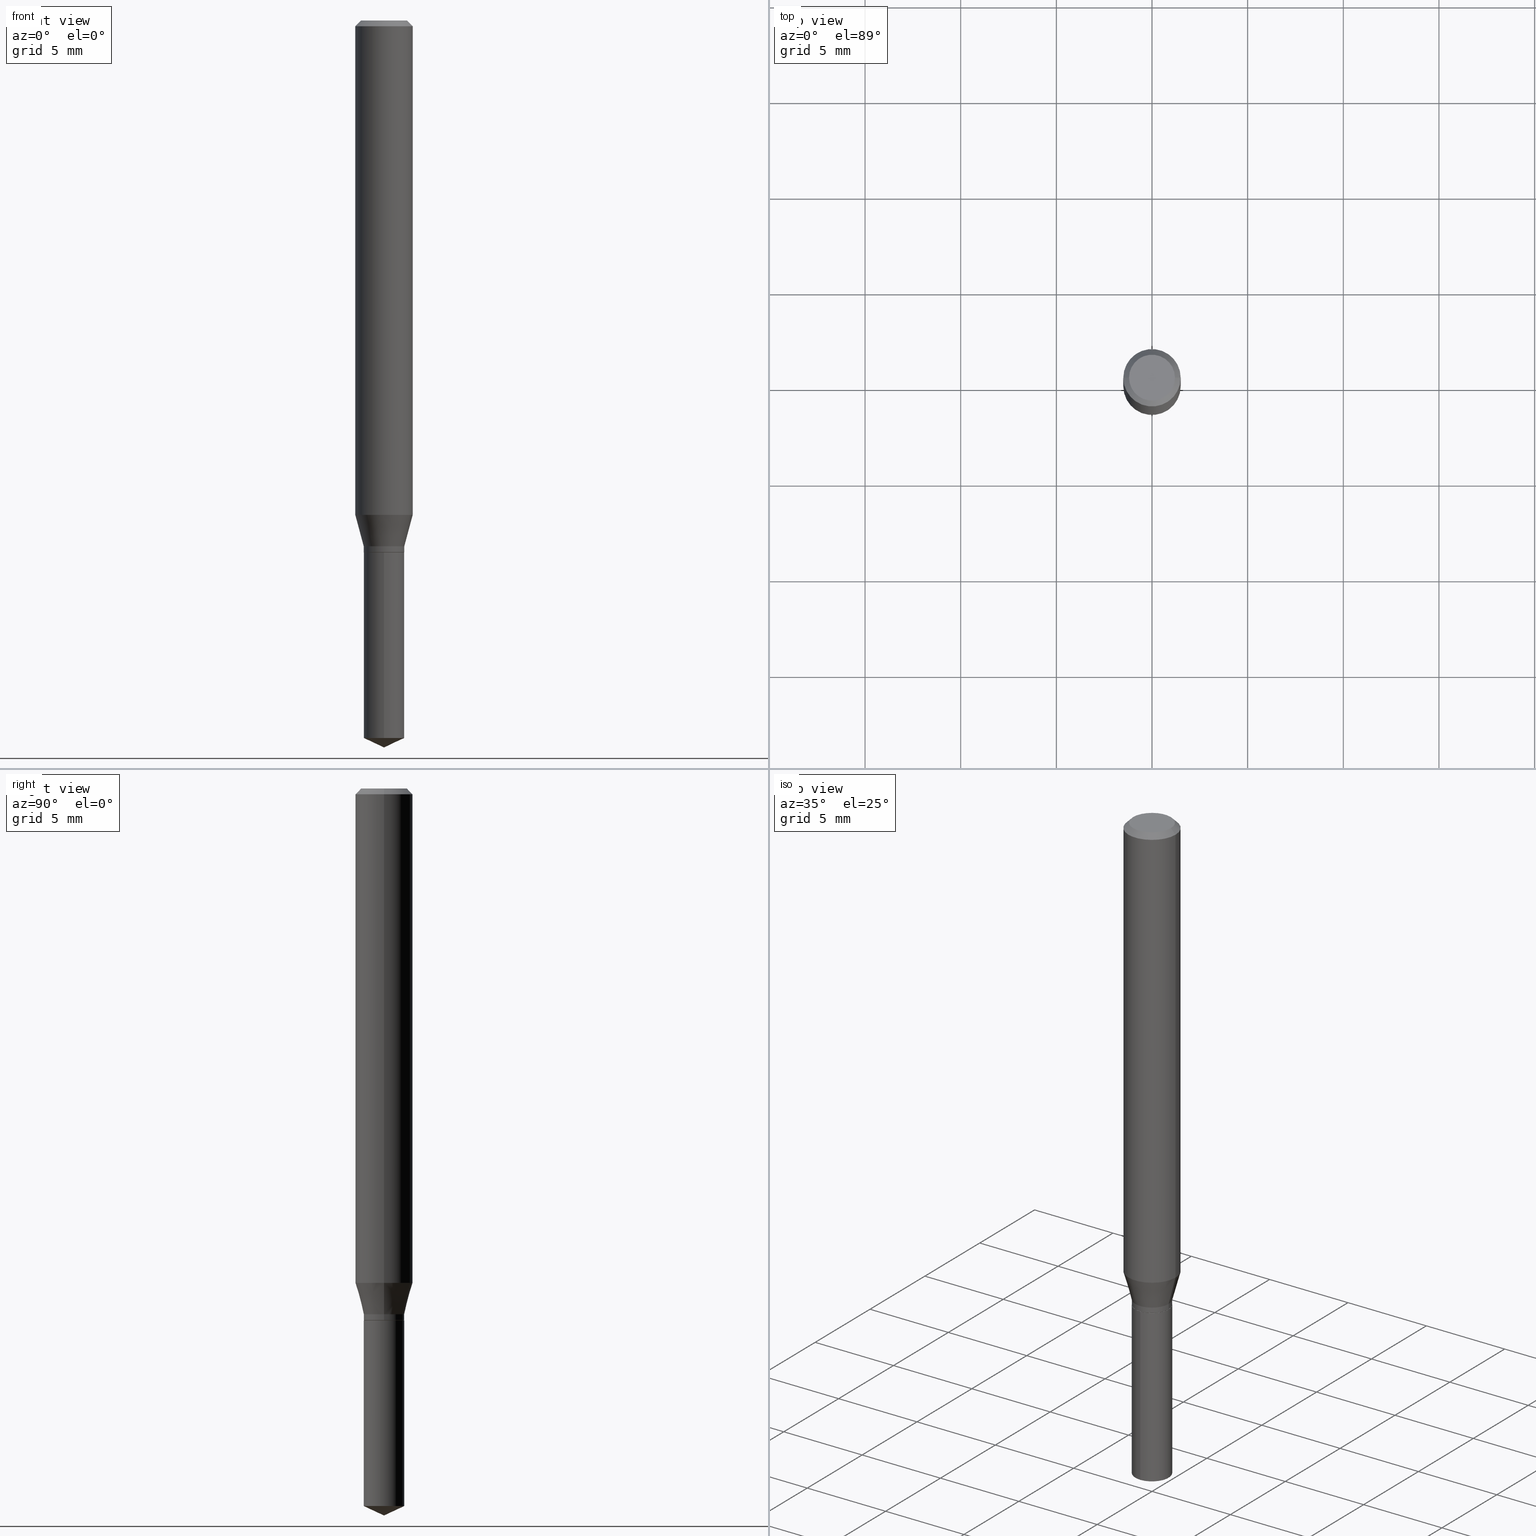
[diagram: canonical four-view strip — front | top / right | iso, engineering-drawing reading convention]
A machine part, canonical four-view strip (front | top / right | iso — engineering-drawing reading convention). The complete STEP part file that produces these views, byte-faithful:
ISO-10303-21;
HEADER;
FILE_DESCRIPTION (( 'STEP AP203' ),
    '1' );
FILE_NAME ('07615.STEP',
    '2024-04-23T23:48:28',
    ( '' ),
    ( '' ),
    'SwSTEP 2.0',
    'SolidWorks 2023',
    '' );
FILE_SCHEMA (( 'CONFIG_CONTROL_DESIGN' ));
ENDSEC;

DATA;
#1 = COORDINATED_UNIVERSAL_TIME_OFFSET ( 5, 0, .BEHIND. ) ;
#2 = AXIS2_PLACEMENT_3D ( 'NONE', #426, #423, #191 ) ;
#3 = ORGANIZATION ( 'UNSPECIFIED', 'UNSPECIFIED', '' ) ;
#4 = CARTESIAN_POINT ( 'NONE',  ( 0.04724000000000000421, -3.852183633974369838E-16, -3.380025165621689721E-19 ) ) ;
#5 = DIRECTION ( 'NONE',  ( -2.445468806185136877E-29, 3.491481338843145188E-15, 1.000000000000000000 ) ) ;
#6 = DIRECTION ( 'NONE',  ( 1.000000000000000000, -6.982962677686269077E-15, 0.000000000000000000 ) ) ;
#7 = DIRECTION ( 'NONE',  ( -2.445468806185136597E-29, 3.491481338843145583E-15, 1.000000000000000000 ) ) ;
#8 = DESIGN_CONTEXT ( 'detailed design', #301, 'design' ) ;
#9 = DIRECTION ( 'NONE',  ( -6.328713451373384367E-15, -0.9063077870366507138, 0.4226182617406976649 ) ) ;
#10 = DIRECTION ( 'NONE',  ( -6.982962677686268288E-15, -1.000000000000000000, 3.520397390770420738E-15 ) ) ;
#11 = VECTOR ( 'NONE', #251, 39.37007874015748143 ) ;
#12 = CARTESIAN_POINT ( 'NONE',  ( -2.915386917933655073E-16, -0.04175000000000516492, -1.476631655272028665 ) ) ;
#13 = CC_DESIGN_SECURITY_CLASSIFICATION ( #363, ( #417 ) ) ;
#14 = EDGE_LOOP ( 'NONE', ( #66, #106, #164, #389 ) ) ;
#15 = CARTESIAN_POINT ( 'NONE',  ( 0.04175000000000000239, -4.069321500421684169E-15, -1.081999999999999851 ) ) ;
#16 = CARTESIAN_POINT ( 'NONE',  ( 2.676565608369631794E-29, -3.821426325363822773E-15, -1.094499999999999806 ) ) ;
#17 = DIRECTION ( 'NONE',  ( -6.982962677686266711E-15, -1.000000000000000000, 3.271674243909297046E-15 ) ) ;
#18 = EDGE_CURVE ( 'NONE', #35, #111, #105, .T. ) ;
#19 = CYLINDRICAL_SURFACE ( 'NONE', #295, 0.05905000000000006771 ) ;
#20 = CARTESIAN_POINT ( 'NONE',  ( 2.676565608369631794E-29, -3.821426325363822773E-15, -1.094499999999999806 ) ) ;
#21 = VECTOR ( 'NONE', #9, 39.37007874015748854 ) ;
#22 = LINE ( 'NONE', #27, #11 ) ;
#23 = EDGE_LOOP ( 'NONE', ( #406, #482, #462, #44 ) ) ;
#24 = DATE_AND_TIME ( #355, #30 ) ;
#25 = DIRECTION ( 'NONE',  ( 1.000000000000000000, -6.982962677686269077E-15, 0.000000000000000000 ) ) ;
#26 = APPROVAL_STATUS ( 'not_yet_approved' ) ;
#27 = CARTESIAN_POINT ( 'NONE',  ( -0.04175000000000000239, 2.966515921798418446E-16, -2.053655400181423574E-30 ) ) ;
#28 = ORIENTED_EDGE ( 'NONE', *, *, #99, .F. ) ;
#29 =( LENGTH_UNIT ( ) NAMED_UNIT ( * ) SI_UNIT ( $, .METRE. ) );
#30 = LOCAL_TIME ( 19, 48, 28.00000000000000000, #471 ) ;
#31 = ADVANCED_FACE ( 'NONE', ( #270 ), #121, .F. ) ;
#32 = ADVANCED_FACE ( 'NONE', ( #458 ), #265, .T. ) ;
#33 = AXIS2_PLACEMENT_3D ( 'NONE', #469, #131, #59 ) ;
#34 = AXIS2_PLACEMENT_3D ( 'NONE', #39, #80, #353 ) ;
#35 = VERTEX_POINT ( 'NONE', #461 ) ;
#36 = PERSON_AND_ORGANIZATION ( #382, #3 ) ;
#37 = UNCERTAINTY_MEASURE_WITH_UNIT (LENGTH_MEASURE( 1.000000000000000082E-05 ), #445, 'distance_accuracy_value', 'NONE');
#38 = DIRECTION ( 'NONE',  ( 1.000000000000000000, -6.982962677686267499E-15, 0.000000000000000000 ) ) ;
#39 = CARTESIAN_POINT ( 'NONE',  ( 8.265746106709734507E-48, -1.180129479067563789E-33, -3.380025165646692144E-19 ) ) ;
#40 = DIRECTION ( 'NONE',  ( 1.000000000000000000, -6.982962677686265133E-15, 0.000000000000000000 ) ) ;
#41 = AXIS2_PLACEMENT_3D ( 'NONE', #199, #314, #230 ) ;
#42 = AXIS2_PLACEMENT_3D ( 'NONE', #402, #367, #180 ) ;
#43 = EDGE_CURVE ( 'NONE', #274, #281, #49, .T. ) ;
#44 = ORIENTED_EDGE ( 'NONE', *, *, #101, .T. ) ;
#45 = LINE ( 'NONE', #428, #383 ) ;
#46 = PRODUCT ( '07615', '07615', '', ( #420 ) ) ;
#47 = CARTESIAN_POINT ( 'NONE',  ( -0.04724000000000000421, 3.504923541997677355E-16, -3.380025165670481712E-19 ) ) ;
#48 = EDGE_CURVE ( 'NONE', #281, #325, #253, .T. ) ;
#49 = LINE ( 'NONE', #465, #474 ) ;
#50 = CARTESIAN_POINT ( 'NONE',  ( -0.04175000000000000239, -3.481131216448440529E-15, -1.081999999999999851 ) ) ;
#51 = DIRECTION ( 'NONE',  ( 0.2588190451025213501, 1.565188264969621968E-15, 0.9659258262890682012 ) ) ;
#52 = VECTOR ( 'NONE', #275, 39.37007874015748143 ) ;
#53 = CARTESIAN_POINT ( 'NONE',  ( 0.05905000000000000526, -4.535783407291119586E-16, -0.01181000000000007565 ) ) ;
#54 = EDGE_LOOP ( 'NONE', ( #56, #240, #145, #401 ) ) ;
#55 = CARTESIAN_POINT ( 'NONE',  ( -9.261924752013118283E-28, 1.322368428517963298E-13, 37.87397874015748300 ) ) ;
#56 = ORIENTED_EDGE ( 'NONE', *, *, #48, .T. ) ;
#57 = CARTESIAN_POINT ( 'NONE',  ( 0.04175000000000000239, -4.069321500421684169E-15, -1.081999999999999851 ) ) ;
#58 = APPROVAL_ROLE ( '' ) ;
#59 = DIRECTION ( 'NONE',  ( 1.000000000000000000, -6.982962677686266711E-15, 4.876176775795936914E-29 ) ) ;
#60 = EDGE_LOOP ( 'NONE', ( #88, #156, #171, #161 ) ) ;
#61 = PERSON_AND_ORGANIZATION_ROLE ( 'creator' ) ;
#62 =( NAMED_UNIT ( * ) PLANE_ANGLE_UNIT ( ) SI_UNIT ( $, .RADIAN. ) );
#63 = VECTOR ( 'NONE', #358, 39.37007874015748143 ) ;
#64 = DATE_AND_TIME ( #376, #256 ) ;
#65 = CC_DESIGN_APPROVAL ( #259, ( #363 ) ) ;
#66 = ORIENTED_EDGE ( 'NONE', *, *, #343, .F. ) ;
#67 = FACE_OUTER_BOUND ( 'NONE', #237, .T. ) ;
#68 = APPROVAL_PERSON_ORGANIZATION ( #484, #259, #369 ) ;
#69 = CALENDAR_DATE ( 2024, 23, 4 ) ;
#70 = APPROVAL_DATE_TIME ( #450, #259 ) ;
#71 = EDGE_CURVE ( 'NONE', #414, #135, #291, .T. ) ;
#72 = CIRCLE ( 'NONE', #139, 0.04175000000000000239 ) ;
#73 = AXIS2_PLACEMENT_3D ( 'NONE', #20, #399, #440 ) ;
#74 = EDGE_CURVE ( 'NONE', #135, #414, #361, .T. ) ;
#75 = ORIENTED_EDGE ( 'NONE', *, *, #222, .F. ) ;
#76 = SECURITY_CLASSIFICATION_LEVEL ( 'unclassified' ) ;
#77 = CIRCLE ( 'NONE', #34, 0.04724000000000000421 ) ;
#78 = PERSON_AND_ORGANIZATION_ROLE ( 'design_supplier' ) ;
#79 = LINE ( 'NONE', #15, #334 ) ;
#80 = DIRECTION ( 'NONE',  ( -2.445468806185136597E-29, 3.491481338843145583E-15, 1.000000000000000000 ) ) ;
#81 = DIRECTION ( 'NONE',  ( -6.982962677686266711E-15, -1.000000000000000000, 6.543348487818594091E-15 ) ) ;
#82 = AXIS2_PLACEMENT_3D ( 'NONE', #159, #380, #434 ) ;
#83 = EDGE_CURVE ( 'NONE', #201, #431, #279, .T. ) ;
#84 = AXIS2_PLACEMENT_3D ( 'NONE', #160, #463, #282 ) ;
#85 = APPROVAL ( #147, 'UNSPECIFIED' ) ;
#86 = FACE_OUTER_BOUND ( 'NONE', #370, .T. ) ;
#87 = EDGE_LOOP ( 'NONE', ( #243, #178 ) ) ;
#88 = ORIENTED_EDGE ( 'NONE', *, *, #250, .T. ) ;
#89 = EDGE_LOOP ( 'NONE', ( #93, #468, #129, #357 ) ) ;
#90 = DIRECTION ( 'NONE',  ( -2.445458899330790108E-29, 3.491495526022433205E-15, 1.000000000000000000 ) ) ;
#91 = DIRECTION ( 'NONE',  ( -2.445468806185136597E-29, 3.491481338843145583E-15, 1.000000000000000000 ) ) ;
#92 = DIRECTION ( 'NONE',  ( -2.445468806185136597E-29, 3.491481338843145583E-15, 1.000000000000000000 ) ) ;
#93 = ORIENTED_EDGE ( 'NONE', *, *, #448, .F. ) ;
#94 = CARTESIAN_POINT ( 'NONE',  ( 0.04175000000000000239, -4.111219276487802621E-15, -1.093999999999999861 ) ) ;
#95 = CARTESIAN_POINT ( 'NONE',  ( 0.000000000000000000, 0.000000000000000000, 0.000000000000000000 ) ) ;
#96 = DIRECTION ( 'NONE',  ( 1.000000000000000000, -6.982962677686268288E-15, 0.000000000000000000 ) ) ;
#97 = CARTESIAN_POINT ( 'NONE',  ( 0.05905000000000000526, -4.463468013801467941E-16, -0.01181000000000007565 ) ) ;
#98 = ORIENTED_EDGE ( 'NONE', *, *, #403, .T. ) ;
#99 = EDGE_CURVE ( 'NONE', #35, #433, #154, .T. ) ;
#100 = APPROVAL_DATE_TIME ( #205, #236 ) ;
#101 = EDGE_CURVE ( 'NONE', #351, #431, #339, .T. ) ;
#102 = CARTESIAN_POINT ( 'NONE',  ( -0.04125000000000000194, -3.528327446862781778E-15, -1.094500000000000028 ) ) ;
#103 = AXIS2_PLACEMENT_3D ( 'NONE', #480, #407, #177 ) ;
#104 = AXIS2_PLACEMENT_3D ( 'NONE', #16, #90, #231 ) ;
#105 = LINE ( 'NONE', #126, #427 ) ;
#106 = ORIENTED_EDGE ( 'NONE', *, *, #329, .T. ) ;
#107 = ORIENTED_EDGE ( 'NONE', *, *, #394, .F. ) ;
#108 = PERSON_AND_ORGANIZATION ( #382, #3 ) ;
#109 = APPLICATION_PROTOCOL_DEFINITION ( 'international standard', 'config_control_design', 1994, #217 ) ;
#110 = ADVANCED_FACE ( 'NONE', ( #387 ), #437, .T. ) ;
#111 = VERTEX_POINT ( 'NONE', #119 ) ;
#112 = EDGE_CURVE ( 'NONE', #281, #201, #79, .T. ) ;
#113 = CARTESIAN_POINT ( 'NONE',  ( 4.132873053354867254E-48, -5.900647395337818946E-34, -1.690012582823346072E-19 ) ) ;
#114 = AXIS2_PLACEMENT_3D ( 'NONE', #324, #207, #17 ) ;
#115 = EDGE_CURVE ( 'NONE', #433, #35, #72, .T. ) ;
#116 = DIRECTION ( 'NONE',  ( -2.445468806185136597E-29, 3.491481338843145583E-15, 1.000000000000000000 ) ) ;
#117 = DIRECTION ( 'NONE',  ( 0.7071067811864267805, -2.468850131080992517E-15, 0.7071067811866682540 ) ) ;
#118 = ORIENTED_EDGE ( 'NONE', *, *, #424, .F. ) ;
#119 = CARTESIAN_POINT ( 'NONE',  ( 2.966515921798779349E-16, 0.04174999999999617906, -1.094500000000000028 ) ) ;
#120 = EDGE_CURVE ( 'NONE', #430, #351, #45, .T. ) ;
#121 = PLANE ( 'NONE',  #272 ) ;
#122 = VERTEX_POINT ( 'NONE', #238 ) ;
#123 = CARTESIAN_POINT ( 'NONE',  ( -2.915386917933749243E-16, -0.04175000000000383266, -1.094499999999999806 ) ) ;
#124 = ORIENTED_EDGE ( 'NONE', *, *, #120, .F. ) ;
#125 = DIRECTION ( 'NONE',  ( -2.445458899330790108E-29, 3.491495526022433205E-15, 1.000000000000000000 ) ) ;
#126 = CARTESIAN_POINT ( 'NONE',  ( 2.966515921798685672E-16, 0.04174999999999617906, -1.094500000000000028 ) ) ;
#127 = CIRCLE ( 'NONE', #411, 0.05905000000000013016 ) ;
#128 = CARTESIAN_POINT ( 'NONE',  ( 8.265746106709734507E-48, -1.180129479067563789E-33, -3.380025165646692144E-19 ) ) ;
#129 = ORIENTED_EDGE ( 'NONE', *, *, #418, .T. ) ;
#130 = ORIENTED_EDGE ( 'NONE', *, *, #115, .F. ) ;
#131 = DIRECTION ( 'NONE',  ( -2.445468806185136597E-29, 3.491481338843145583E-15, 1.000000000000000000 ) ) ;
#132 = DIRECTION ( 'NONE',  ( 2.445468806185136597E-29, -3.491481338843145583E-15, -1.000000000000000000 ) ) ;
#133 = ORIENTED_EDGE ( 'NONE', *, *, #418, .F. ) ;
#134 = DIRECTION ( 'NONE',  ( -0.2588190451025213501, 5.211531920934551042E-15, 0.9659258262890682012 ) ) ;
#135 = VERTEX_POINT ( 'NONE', #168 ) ;
#136 = ORIENTED_EDGE ( 'NONE', *, *, #184, .T. ) ;
#137 = FACE_OUTER_BOUND ( 'NONE', #333, .T. ) ;
#138 = COORDINATED_UNIVERSAL_TIME_OFFSET ( 5, 0, .BEHIND. ) ;
#139 = AXIS2_PLACEMENT_3D ( 'NONE', #352, #202, #81 ) ;
#140 = CC_DESIGN_APPROVAL ( #236, ( #307 ) ) ;
#141 = DIRECTION ( 'NONE',  ( -2.445458899330790108E-29, 3.491495526022433599E-15, 1.000000000000000000 ) ) ;
#142 = ORIENTED_EDGE ( 'NONE', *, *, #263, .F. ) ;
#143 = DIRECTION ( 'NONE',  ( -2.445468806185136597E-29, 3.491481338843145583E-15, 1.000000000000000000 ) ) ;
#144 = ADVANCED_FACE ( 'NONE', ( #391 ), #190, .T. ) ;
#145 = ORIENTED_EDGE ( 'NONE', *, *, #250, .F. ) ;
#146 = CC_DESIGN_PERSON_AND_ORGANIZATION_ASSIGNMENT ( #36, #422, ( #363 ) ) ;
#147 = APPROVAL_STATUS ( 'not_yet_approved' ) ;
#148 = CYLINDRICAL_SURFACE ( 'NONE', #73, 0.04175000000000000239 ) ;
#149 = CIRCLE ( 'NONE', #421, 0.05905000000000000526 ) ;
#150 = CIRCLE ( 'NONE', #276, 0.04724000000000000421 ) ;
#151 = ORIENTED_EDGE ( 'NONE', *, *, #74, .F. ) ;
#152 = EDGE_CURVE ( 'NONE', #430, #201, #416, .T. ) ;
#153 = PERSON_AND_ORGANIZATION ( #382, #3 ) ;
#154 = CIRCLE ( 'NONE', #326, 0.04175000000000000239 ) ;
#155 = DIRECTION ( 'NONE',  ( 2.438088387897960049E-29, -3.491481338843145188E-15, -1.000000000000000000 ) ) ;
#156 = ORIENTED_EDGE ( 'NONE', *, *, #120, .T. ) ;
#157 = LINE ( 'NONE', #459, #309 ) ;
#158 = ADVANCED_FACE ( 'NONE', ( #195 ), #174, .T. ) ;
#159 = CARTESIAN_POINT ( 'NONE',  ( 2.888098660104664642E-31, -4.123439461173780879E-17, -0.01181000000000007565 ) ) ;
#160 = CARTESIAN_POINT ( 'NONE',  ( 2.676565608369632355E-29, -3.821426325363822773E-15, -1.094500000000000028 ) ) ;
#161 = ORIENTED_EDGE ( 'NONE', *, *, #83, .F. ) ;
#162 = CARTESIAN_POINT ( 'NONE',  ( -9.261924752013118283E-28, 1.322368428517963298E-13, 37.87397874015748300 ) ) ;
#163 = FACE_OUTER_BOUND ( 'NONE', #87, .T. ) ;
#164 = ORIENTED_EDGE ( 'NONE', *, *, #112, .T. ) ;
#165 = FACE_OUTER_BOUND ( 'NONE', #312, .T. ) ;
#166 = AXIS2_PLACEMENT_3D ( 'NONE', #209, #286, #25 ) ;
#167 = CARTESIAN_POINT ( 'NONE',  ( 2.888098660104664642E-31, -4.123439461173780879E-17, -0.01181000000000007565 ) ) ;
#168 = CARTESIAN_POINT ( 'NONE',  ( -0.04125000000000000194, -3.525678219688670183E-15, -1.094500000000000028 ) ) ;
#169 = LINE ( 'NONE', #50, #385 ) ;
#170 = FACE_OUTER_BOUND ( 'NONE', #366, .T. ) ;
#171 = ORIENTED_EDGE ( 'NONE', *, *, #486, .F. ) ;
#172 = ORIENTED_EDGE ( 'NONE', *, *, #394, .T. ) ;
#173 = CARTESIAN_POINT ( 'NONE',  ( -2.915386917933749243E-16, -0.04175000000000383266, -1.094499999999999806 ) ) ;
#174 = CONICAL_SURFACE ( 'NONE', #451, 84.42940631927513095, 1.134464013796319559 ) ;
#175 = AXIS2_PLACEMENT_3D ( 'NONE', #268, #308, #429 ) ;
#176 = ADVANCED_FACE ( 'NONE', ( #165 ), #310, .T. ) ;
#177 = DIRECTION ( 'NONE',  ( 1.000000000000000000, -6.982962677686265922E-15, 4.876176775795935793E-29 ) ) ;
#178 = ORIENTED_EDGE ( 'NONE', *, *, #424, .T. ) ;
#179 = PRODUCT_DEFINITION_SHAPE ( 'NONE', 'NONE',  #307 ) ;
#180 = DIRECTION ( 'NONE',  ( 1.000000000000000000, -6.982962677686266711E-15, 4.876176775795936914E-29 ) ) ;
#181 = LENGTH_MEASURE_WITH_UNIT ( LENGTH_MEASURE( 0.02539999999999999897 ), #29 );
#182 = AXIS2_PLACEMENT_3D ( 'NONE', #432, #91, #241 ) ;
#183 = AXIS2_PLACEMENT_3D ( 'NONE', #206, #218, #226 ) ;
#184 = EDGE_CURVE ( 'NONE', #412, #431, #441, .T. ) ;
#185 = ADVANCED_FACE ( 'NONE', ( #288 ), #19, .T. ) ;
#186 = ORIENTED_EDGE ( 'NONE', *, *, #101, .F. ) ;
#187 = ORIENTED_EDGE ( 'NONE', *, *, #71, .F. ) ;
#188 = CARTESIAN_POINT ( 'NONE',  ( 3.611052865470621023E-29, -5.155637290097658603E-15, -1.476631655272029109 ) ) ;
#189 = DIRECTION ( 'NONE',  ( 1.000000000000000000, -6.982962677686266711E-15, 4.876185090822587894E-29 ) ) ;
#190 = CONICAL_SURFACE ( 'NONE', #41, 0.04125000000000000194, 0.7853981633972775267 ) ;
#191 = DIRECTION ( 'NONE',  ( 1.000000000000000000, -6.982962677686269077E-15, 0.000000000000000000 ) ) ;
#192 = CONICAL_SURFACE ( 'NONE', #488, 0.05905000000000000526, 0.7853981633974453924 ) ;
#193 = CARTESIAN_POINT ( 'NONE',  ( -0.04175000000000000239, -3.502080104481499755E-15, -1.081999999999999851 ) ) ;
#194 = ORIENTED_EDGE ( 'NONE', *, *, #222, .T. ) ;
#195 = FACE_OUTER_BOUND ( 'NONE', #258, .T. ) ;
#196 = DIRECTION ( 'NONE',  ( -0.7071067811865454633, 2.468850131082235367E-15, -0.7071067811865495711 ) ) ;
#197 = ORIENTED_EDGE ( 'NONE', *, *, #99, .T. ) ;
#198 = ORIENTED_EDGE ( 'NONE', *, *, #283, .F. ) ;
#199 = CARTESIAN_POINT ( 'NONE',  ( 2.676565608369632355E-29, -3.821426325363822773E-15, -1.094500000000000028 ) ) ;
#200 = DIRECTION ( 'NONE',  ( 1.000000000000000000, -6.982962677686266711E-15, 4.876176775795936353E-29 ) ) ;
#201 = VERTEX_POINT ( 'NONE', #360 ) ;
#202 = DIRECTION ( 'NONE',  ( -2.445458899330790108E-29, 3.491495526022433205E-15, 1.000000000000000000 ) ) ;
#203 = DIRECTION ( 'NONE',  ( -2.445468806185136597E-29, 3.491481338843145583E-15, 1.000000000000000000 ) ) ;
#204 = DIRECTION ( 'NONE',  ( -2.445458899330790108E-29, 3.491495526022433205E-15, 1.000000000000000000 ) ) ;
#205 = DATE_AND_TIME ( #371, #246 ) ;
#206 = CARTESIAN_POINT ( 'NONE',  ( 0.000000000000000000, 0.000000000000000000, 0.000000000000000000 ) ) ;
#207 = DIRECTION ( 'NONE',  ( -2.445458899330790108E-29, 3.491495526022433205E-15, 1.000000000000000000 ) ) ;
#208 = ADVANCED_FACE ( 'NONE', ( #446 ), #252, .F. ) ;
#209 = CARTESIAN_POINT ( 'NONE',  ( 2.645997248292317363E-29, -3.777782808628282818E-15, -1.081999999999999851 ) ) ;
#210 = DATE_TIME_ROLE ( 'classification_date' ) ;
#211 = DIRECTION ( 'NONE',  ( 1.000000000000000000, -6.982962677686266711E-15, 4.876176775795936353E-29 ) ) ;
#212 = ORIENTED_EDGE ( 'NONE', *, *, #329, .F. ) ;
#213 = CLOSED_SHELL ( 'NONE', ( #338, #32, #185, #110, #261, #176, #453, #365, #442, #31, #208, #144 ) ) ;
#214 = CIRCLE ( 'NONE', #285, 0.04175000000000000239 ) ;
#215 = ORIENTED_EDGE ( 'NONE', *, *, #403, .F. ) ;
#216 = CYLINDRICAL_SURFACE ( 'NONE', #42, 0.04175000000000000239 ) ;
#217 = APPLICATION_CONTEXT ( 'configuration controlled 3d designs of mechanical parts and assemblies' ) ;
#218 = DIRECTION ( 'NONE',  ( 0.000000000000000000, 0.000000000000000000, 1.000000000000000000 ) ) ;
#219 = PERSON_AND_ORGANIZATION_ROLE ( 'creator' ) ;
#220 = CLOSED_SHELL ( 'NONE', ( #223, #158, #245, #475, #294 ) ) ;
#221 = CIRCLE ( 'NONE', #104, 0.04175000000000000239 ) ;
#222 = EDGE_CURVE ( 'NONE', #122, #325, #22, .T. ) ;
#223 = ADVANCED_FACE ( 'NONE', ( #170 ), #249, .T. ) ;
#224 = SHAPE_DEFINITION_REPRESENTATION ( #179, #373 ) ;
#225 = EDGE_LOOP ( 'NONE', ( #239, #197, #345, #118 ) ) ;
#226 = DIRECTION ( 'NONE',  ( 1.000000000000000000, 0.000000000000000000, 0.000000000000000000 ) ) ;
#227 = CONICAL_SURFACE ( 'NONE', #234, 84.42940631927513095, 1.134464013796319559 ) ;
#228 = COORDINATED_UNIVERSAL_TIME_OFFSET ( 5, 0, .BEHIND. ) ;
#229 = DIRECTION ( 'NONE',  ( -2.445468806185136597E-29, 3.491481338843145583E-15, 1.000000000000000000 ) ) ;
#230 = DIRECTION ( 'NONE',  ( 1.000000000000000000, -6.982962677686267499E-15, 0.000000000000000000 ) ) ;
#231 = DIRECTION ( 'NONE',  ( -6.982962677686266711E-15, -1.000000000000000000, 3.271674243909297046E-15 ) ) ;
#232 = DATE_AND_TIME ( #379, #372 ) ;
#233 = VERTEX_POINT ( 'NONE', #410 ) ;
#234 = AXIS2_PLACEMENT_3D ( 'NONE', #55, #319, #322 ) ;
#235 = FACE_OUTER_BOUND ( 'NONE', #390, .T. ) ;
#236 = APPROVAL ( #444, 'UNSPECIFIED' ) ;
#237 = EDGE_LOOP ( 'NONE', ( #386, #194, #490, #248 ) ) ;
#238 = CARTESIAN_POINT ( 'NONE',  ( -0.04175000000000000239, -3.502080104481499755E-15, -1.093999999999999861 ) ) ;
#239 = ORIENTED_EDGE ( 'NONE', *, *, #18, .F. ) ;
#240 = ORIENTED_EDGE ( 'NONE', *, *, #343, .T. ) ;
#241 = DIRECTION ( 'NONE',  ( 1.000000000000000000, -6.982962677686268288E-15, 0.000000000000000000 ) ) ;
#242 = CARTESIAN_POINT ( 'NONE',  ( 0.000000000000000000, 0.000000000000000000, 0.000000000000000000 ) ) ;
#243 = ORIENTED_EDGE ( 'NONE', *, *, #263, .T. ) ;
#244 = CARTESIAN_POINT ( 'NONE',  ( 3.658672935554494692E-29, -5.223595400746700193E-15, -1.496099999999999985 ) ) ;
#245 = ADVANCED_FACE ( 'NONE', ( #137 ), #227, .T. ) ;
#246 = LOCAL_TIME ( 19, 48, 28.00000000000000000, #138 ) ;
#247 = DIRECTION ( 'NONE',  ( 1.000000000000000000, -6.982962677686269077E-15, 0.000000000000000000 ) ) ;
#248 = ORIENTED_EDGE ( 'NONE', *, *, #43, .F. ) ;
#249 = CYLINDRICAL_SURFACE ( 'NONE', #328, 0.04175000000000000239 ) ;
#250 = EDGE_CURVE ( 'NONE', #201, #430, #127, .T. ) ;
#251 = DIRECTION ( 'NONE',  ( -2.445468806185136877E-29, 3.491481338843145188E-15, 1.000000000000000000 ) ) ;
#252 = PLANE ( 'NONE',  #103 ) ;
#253 = CIRCLE ( 'NONE', #297, 0.04175000000000000239 ) ;
#254 = APPROVAL_ROLE ( '' ) ;
#255 = CIRCLE ( 'NONE', #362, 0.04175000000000000239 ) ;
#256 = LOCAL_TIME ( 19, 48, 28.00000000000000000, #228 ) ;
#257 = COORDINATED_UNIVERSAL_TIME_OFFSET ( 5, 0, .BEHIND. ) ;
#258 = EDGE_LOOP ( 'NONE', ( #107, #398, #130 ) ) ;
#259 = APPROVAL ( #26, 'UNSPECIFIED' ) ;
#260 = DIRECTION ( 'NONE',  ( -1.000000000000000000, 6.982962677686265922E-15, 0.000000000000000000 ) ) ;
#261 = ADVANCED_FACE ( 'NONE', ( #67 ), #216, .T. ) ;
#262 = VECTOR ( 'NONE', #141, 39.37007874015748143 ) ;
#263 = EDGE_CURVE ( 'NONE', #313, #111, #467, .T. ) ;
#264 = ORIENTED_EDGE ( 'NONE', *, *, #332, .T. ) ;
#265 = CONICAL_SURFACE ( 'NONE', #82, 0.05905000000000000526, 0.7853981633974453924 ) ;
#266 =( GEOMETRIC_REPRESENTATION_CONTEXT ( 3 ) GLOBAL_UNCERTAINTY_ASSIGNED_CONTEXT ( ( #37 ) ) GLOBAL_UNIT_ASSIGNED_CONTEXT ( ( #445, #62, #404 ) ) REPRESENTATION_CONTEXT ( 'NONE', 'WORKASPACE' ) );
#267 = DIRECTION ( 'NONE',  ( 1.000000000000000000, -6.982962677686267499E-15, 0.000000000000000000 ) ) ;
#268 = CARTESIAN_POINT ( 'NONE',  ( 2.676565608369631794E-29, -3.821426325363822773E-15, -1.094499999999999806 ) ) ;
#269 = CARTESIAN_POINT ( 'NONE',  ( 2.676565608369632355E-29, -3.821426325363822773E-15, -1.094500000000000028 ) ) ;
#270 = FACE_OUTER_BOUND ( 'NONE', #405, .T. ) ;
#271 = CARTESIAN_POINT ( 'NONE',  ( 2.675342873966538993E-29, -3.819680584694400481E-15, -1.093999999999999861 ) ) ;
#272 = AXIS2_PLACEMENT_3D ( 'NONE', #113, #155, #344 ) ;
#273 = AXIS2_PLACEMENT_3D ( 'NONE', #242, #396, #200 ) ;
#274 = VERTEX_POINT ( 'NONE', #94 ) ;
#275 = DIRECTION ( 'NONE',  ( -2.445468806185136877E-29, 3.491481338843145188E-15, 1.000000000000000000 ) ) ;
#276 = AXIS2_PLACEMENT_3D ( 'NONE', #128, #349, #189 ) ;
#277 = EDGE_CURVE ( 'NONE', #233, #35, #439, .T. ) ;
#278 = CARTESIAN_POINT ( 'NONE',  ( 0.04125000000000000194, -4.109473535818381906E-15, -1.094500000000000028 ) ) ;
#279 = LINE ( 'NONE', #306, #52 ) ;
#280 = CARTESIAN_POINT ( 'NONE',  ( -0.05905000000000000526, -1.377220279414083297E-15, -0.01181000000000007565 ) ) ;
#281 = VERTEX_POINT ( 'NONE', #57 ) ;
#282 = DIRECTION ( 'NONE',  ( 1.000000000000000000, -6.982962677686267499E-15, 0.000000000000000000 ) ) ;
#283 = EDGE_CURVE ( 'NONE', #433, #313, #356, .T. ) ;
#284 = CARTESIAN_POINT ( 'NONE',  ( 2.488106828981282668E-29, -3.552357135149109035E-15, -1.017435521029057988 ) ) ;
#285 = AXIS2_PLACEMENT_3D ( 'NONE', #302, #305, #6 ) ;
#286 = DIRECTION ( 'NONE',  ( -2.445468806185136597E-29, 3.491481338843145583E-15, 1.000000000000000000 ) ) ;
#287 = DIRECTION ( 'NONE',  ( 0.7071067811865454633, -7.319954787623248157E-15, -0.7071067811865495711 ) ) ;
#288 = FACE_OUTER_BOUND ( 'NONE', #60, .T. ) ;
#289 = EDGE_LOOP ( 'NONE', ( #187, #151 ) ) ;
#290 = CC_DESIGN_PERSON_AND_ORGANIZATION_ASSIGNMENT ( #153, #78, ( #417 ) ) ;
#291 = CIRCLE ( 'NONE', #409, 0.04125000000000000194 ) ;
#292 = DIRECTION ( 'NONE',  ( -2.445468806185136597E-29, 3.491481338843145583E-15, 1.000000000000000000 ) ) ;
#293 = PERSON_AND_ORGANIZATION_ROLE ( 'design_owner' ) ;
#294 = ADVANCED_FACE ( 'NONE', ( #163 ), #342, .F. ) ;
#295 = AXIS2_PLACEMENT_3D ( 'NONE', #95, #143, #211 ) ;
#296 = LOCAL_TIME ( 19, 48, 28.00000000000000000, #257 ) ;
#297 = AXIS2_PLACEMENT_3D ( 'NONE', #395, #229, #377 ) ;
#298 = APPROVAL_PERSON_ORGANIZATION ( #481, #85, #254 ) ;
#299 = CARTESIAN_POINT ( 'NONE',  ( 2.676565608369632355E-29, -3.821426325363822773E-15, -1.094500000000000028 ) ) ;
#300 = DIRECTION ( 'NONE',  ( -2.445458899330790108E-29, 3.491495526022433599E-15, 1.000000000000000000 ) ) ;
#301 = APPLICATION_CONTEXT ( 'configuration controlled 3d designs of mechanical parts and assemblies' ) ;
#302 = CARTESIAN_POINT ( 'NONE',  ( 2.675342873966538993E-29, -3.819680584694400481E-15, -1.093999999999999861 ) ) ;
#303 = DIRECTION ( 'NONE',  ( -2.445468806185136877E-29, 3.491481338843145188E-15, 1.000000000000000000 ) ) ;
#304 = ORIENTED_EDGE ( 'NONE', *, *, #277, .F. ) ;
#305 = DIRECTION ( 'NONE',  ( -2.445468806185136597E-29, 3.491481338843145583E-15, 1.000000000000000000 ) ) ;
#306 = CARTESIAN_POINT ( 'NONE',  ( 0.05905000000000006771, -4.123439461173745257E-16, 2.879382386107503723E-30 ) ) ;
#307 = PRODUCT_DEFINITION ( 'UNKNOWN', '', #417, #8 ) ;
#308 = DIRECTION ( 'NONE',  ( 2.445458899330789267E-29, -3.491495526022433599E-15, -1.000000000000000000 ) ) ;
#309 = VECTOR ( 'NONE', #117, 39.37007874015748143 ) ;
#310 = CYLINDRICAL_SURFACE ( 'NONE', #33, 0.04175000000000000239 ) ;
#311 = CARTESIAN_POINT ( 'NONE',  ( 2.645997248292317363E-29, -3.777782808628282818E-15, -1.081999999999999851 ) ) ;
#312 = EDGE_LOOP ( 'NONE', ( #75, #264, #368, #212 ) ) ;
#313 = VERTEX_POINT ( 'NONE', #123 ) ;
#314 = DIRECTION ( 'NONE',  ( -2.445468806185136597E-29, 3.491481338843145583E-15, 1.000000000000000000 ) ) ;
#315 = DIRECTION ( 'NONE',  ( -6.982962677686266711E-15, -1.000000000000000000, 3.271674243909297046E-15 ) ) ;
#316 = ORIENTED_EDGE ( 'NONE', *, *, #359, .F. ) ;
#317 = MANIFOLD_SOLID_BREP ( 'Body-Move/Copy2[2]', #213 ) ;
#318 = VERTEX_POINT ( 'NONE', #47 ) ;
#319 = DIRECTION ( 'NONE',  ( -2.445458899330790108E-29, 3.491495526022433205E-15, 1.000000000000000000 ) ) ;
#320 = AXIS2_PLACEMENT_3D ( 'NONE', #470, #347, #40 ) ;
#321 = VECTOR ( 'NONE', #397, 39.37007874015748854 ) ;
#322 = DIRECTION ( 'NONE',  ( -6.982962677686268288E-15, -1.000000000000000000, 3.520397390770420738E-15 ) ) ;
#323 = DATE_TIME_ROLE ( 'creation_date' ) ;
#324 = CARTESIAN_POINT ( 'NONE',  ( 2.676565608369631794E-29, -3.821426325363822773E-15, -1.094499999999999806 ) ) ;
#325 = VERTEX_POINT ( 'NONE', #193 ) ;
#326 = AXIS2_PLACEMENT_3D ( 'NONE', #188, #337, #341 ) ;
#327 = PERSON_AND_ORGANIZATION ( #382, #3 ) ;
#328 = AXIS2_PLACEMENT_3D ( 'NONE', #473, #204, #315 ) ;
#329 = EDGE_CURVE ( 'NONE', #325, #281, #447, .T. ) ;
#330 = MANIFOLD_SOLID_BREP ( 'Body-Move/Copy2[1]', #220 ) ;
#331 = ORIENTED_EDGE ( 'NONE', *, *, #381, .F. ) ;
#332 = EDGE_CURVE ( 'NONE', #122, #274, #214, .T. ) ;
#333 = EDGE_LOOP ( 'NONE', ( #304, #172, #28 ) ) ;
#334 = VECTOR ( 'NONE', #51, 39.37007874015747433 ) ;
#335 = EDGE_LOOP ( 'NONE', ( #215, #136, #464, #331 ) ) ;
#336 = CC_DESIGN_DATE_AND_TIME_ASSIGNMENT ( #64, #210, ( #363 ) ) ;
#337 = DIRECTION ( 'NONE',  ( -2.445458899330790108E-29, 3.491495526022433205E-15, 1.000000000000000000 ) ) ;
#338 = ADVANCED_FACE ( 'NONE', ( #86 ), #489, .T. ) ;
#339 = CIRCLE ( 'NONE', #182, 0.05905000000000000526 ) ;
#340 = CARTESIAN_POINT ( 'NONE',  ( -0.05905000000000013016, -3.132781649682767964E-15, -1.017435521029057988 ) ) ;
#341 = DIRECTION ( 'NONE',  ( -6.982962677686266711E-15, -1.000000000000000000, 6.543348487818594091E-15 ) ) ;
#342 = PLANE ( 'NONE',  #175 ) ;
#343 = EDGE_CURVE ( 'NONE', #325, #430, #169, .T. ) ;
#344 = DIRECTION ( 'NONE',  ( -1.000000000000000000, 6.982962677686265922E-15, -4.876176775795935793E-29 ) ) ;
#345 = ORIENTED_EDGE ( 'NONE', *, *, #283, .T. ) ;
#346 = CARTESIAN_POINT ( 'NONE',  ( 3.658651059288795076E-29, -5.223626456482161457E-15, -1.496099999999999985 ) ) ;
#347 = DIRECTION ( 'NONE',  ( -2.445468806185136597E-29, 3.491481338843145583E-15, 1.000000000000000000 ) ) ;
#348 = PRODUCT_RELATED_PRODUCT_CATEGORY ( 'detail', '', ( #46 ) ) ;
#349 = DIRECTION ( 'NONE',  ( -2.445468806185136597E-29, 3.491481338843145583E-15, 1.000000000000000000 ) ) ;
#350 = ORIENTED_EDGE ( 'NONE', *, *, #71, .T. ) ;
#351 = VERTEX_POINT ( 'NONE', #280 ) ;
#352 = CARTESIAN_POINT ( 'NONE',  ( 3.611052865470621023E-29, -5.155637290097658603E-15, -1.476631655272029109 ) ) ;
#353 = DIRECTION ( 'NONE',  ( 1.000000000000000000, -6.982962677686266711E-15, 4.876185090822587894E-29 ) ) ;
#354 = DIRECTION ( 'NONE',  ( -2.445468806185136597E-29, 3.491481338843145583E-15, 1.000000000000000000 ) ) ;
#355 = CALENDAR_DATE ( 2024, 23, 4 ) ;
#356 = LINE ( 'NONE', #173, #262 ) ;
#357 = ORIENTED_EDGE ( 'NONE', *, *, #332, .F. ) ;
#358 = DIRECTION ( 'NONE',  ( -0.7071067811864267805, 7.493145998869918709E-15, 0.7071067811866682540 ) ) ;
#359 = EDGE_CURVE ( 'NONE', #274, #122, #255, .T. ) ;
#360 = CARTESIAN_POINT ( 'NONE',  ( 0.05905000000000013016, -3.964701081266483560E-15, -1.017435521029057988 ) ) ;
#361 = CIRCLE ( 'NONE', #483, 0.04125000000000000194 ) ;
#362 = AXIS2_PLACEMENT_3D ( 'NONE', #271, #203, #425 ) ;
#363 = SECURITY_CLASSIFICATION ( '', '', #76 ) ;
#364 = FACE_OUTER_BOUND ( 'NONE', #14, .T. ) ;
#365 = ADVANCED_FACE ( 'NONE', ( #235 ), #392, .T. ) ;
#366 = EDGE_LOOP ( 'NONE', ( #460, #400, #142, #198 ) ) ;
#367 = DIRECTION ( 'NONE',  ( -2.445468806185136597E-29, 3.491481338843145583E-15, 1.000000000000000000 ) ) ;
#368 = ORIENTED_EDGE ( 'NONE', *, *, #43, .T. ) ;
#369 = APPROVAL_ROLE ( '' ) ;
#370 = EDGE_LOOP ( 'NONE', ( #350, #485, #316, #133 ) ) ;
#371 = CALENDAR_DATE ( 2024, 23, 4 ) ;
#372 = LOCAL_TIME ( 19, 48, 28.00000000000000000, #1 ) ;
#373 = ADVANCED_BREP_SHAPE_REPRESENTATION ( '07615', ( #330, #317, #183 ), #266 ) ;
#374 = CONICAL_SURFACE ( 'NONE', #166, 0.04175000000000000239, 0.2617993877991500740 ) ;
#375 = PERSON_AND_ORGANIZATION ( #382, #3 ) ;
#376 = CALENDAR_DATE ( 2024, 23, 4 ) ;
#377 = DIRECTION ( 'NONE',  ( 1.000000000000000000, -6.982962677686269077E-15, 0.000000000000000000 ) ) ;
#378 = EDGE_CURVE ( 'NONE', #318, #412, #77, .T. ) ;
#379 = CALENDAR_DATE ( 2024, 23, 4 ) ;
#380 = DIRECTION ( 'NONE',  ( 2.445468806185136597E-29, -3.491481338843145583E-15, -1.000000000000000000 ) ) ;
#381 = EDGE_CURVE ( 'NONE', #318, #351, #472, .T. ) ;
#382 = PERSON ( 'UNSPECIFIED', 'UNSPECIFIED', 'UNSPECIFIED', ('UNSPECIFIED'), ('UNSPECIFIED'), ('UNSPECIFIED') ) ;
#383 = VECTOR ( 'NONE', #5, 39.37007874015748143 ) ;
#384 = FACE_OUTER_BOUND ( 'NONE', #23, .T. ) ;
#385 = VECTOR ( 'NONE', #134, 39.37007874015747433 ) ;
#386 = ORIENTED_EDGE ( 'NONE', *, *, #359, .T. ) ;
#387 = FACE_OUTER_BOUND ( 'NONE', #54, .T. ) ;
#388 = CARTESIAN_POINT ( 'NONE',  ( -0.05905000000000000526, 3.711095515056362547E-16, -0.01181000000000007565 ) ) ;
#389 = ORIENTED_EDGE ( 'NONE', *, *, #152, .F. ) ;
#390 = EDGE_LOOP ( 'NONE', ( #124, #478, #393, #186 ) ) ;
#391 = FACE_OUTER_BOUND ( 'NONE', #89, .T. ) ;
#392 = CYLINDRICAL_SURFACE ( 'NONE', #273, 0.05905000000000006771 ) ;
#393 = ORIENTED_EDGE ( 'NONE', *, *, #83, .T. ) ;
#394 = EDGE_CURVE ( 'NONE', #233, #433, #436, .T. ) ;
#395 = CARTESIAN_POINT ( 'NONE',  ( 2.645997248292317363E-29, -3.777782808628282818E-15, -1.081999999999999851 ) ) ;
#396 = DIRECTION ( 'NONE',  ( -2.445468806185136597E-29, 3.491481338843145583E-15, 1.000000000000000000 ) ) ;
#397 = DIRECTION ( 'NONE',  ( 6.439704144417039031E-15, 0.9063077870366536004, 0.4226182617406913367 ) ) ;
#398 = ORIENTED_EDGE ( 'NONE', *, *, #277, .T. ) ;
#399 = DIRECTION ( 'NONE',  ( -2.445458899330790108E-29, 3.491495526022433205E-15, 1.000000000000000000 ) ) ;
#400 = ORIENTED_EDGE ( 'NONE', *, *, #18, .T. ) ;
#401 = ORIENTED_EDGE ( 'NONE', *, *, #112, .F. ) ;
#402 = CARTESIAN_POINT ( 'NONE',  ( 0.000000000000000000, 0.000000000000000000, 0.000000000000000000 ) ) ;
#403 = EDGE_CURVE ( 'NONE', #412, #318, #150, .T. ) ;
#404 =( NAMED_UNIT ( * ) SI_UNIT ( $, .STERADIAN. ) SOLID_ANGLE_UNIT ( ) );
#405 = EDGE_LOOP ( 'NONE', ( #454, #98 ) ) ;
#406 = ORIENTED_EDGE ( 'NONE', *, *, #184, .F. ) ;
#407 = DIRECTION ( 'NONE',  ( -2.438088387897960049E-29, 3.491481338843145188E-15, 1.000000000000000000 ) ) ;
#408 = CC_DESIGN_PERSON_AND_ORGANIZATION_ASSIGNMENT ( #375, #293, ( #46 ) ) ;
#409 = AXIS2_PLACEMENT_3D ( 'NONE', #299, #7, #38 ) ;
#410 = CARTESIAN_POINT ( 'NONE',  ( 3.658651059288794515E-29, -5.223626456482161457E-15, -1.496099999999999985 ) ) ;
#411 = AXIS2_PLACEMENT_3D ( 'NONE', #284, #354, #477 ) ;
#412 = VERTEX_POINT ( 'NONE', #4 ) ;
#413 = LINE ( 'NONE', #102, #63 ) ;
#414 = VERTEX_POINT ( 'NONE', #278 ) ;
#415 = FACE_OUTER_BOUND ( 'NONE', #225, .T. ) ;
#416 = CIRCLE ( 'NONE', #320, 0.05905000000000013016 ) ;
#417 = PRODUCT_DEFINITION_FORMATION_WITH_SPECIFIED_SOURCE ( 'ANY', '', #46, .NOT_KNOWN. ) ;
#418 = EDGE_CURVE ( 'NONE', #414, #274, #157, .T. ) ;
#419 = CC_DESIGN_PERSON_AND_ORGANIZATION_ASSIGNMENT ( #108, #61, ( #307 ) ) ;
#420 = MECHANICAL_CONTEXT ( 'NONE', #217, 'mechanical' ) ;
#421 = AXIS2_PLACEMENT_3D ( 'NONE', #479, #292, #96 ) ;
#422 = PERSON_AND_ORGANIZATION_ROLE ( 'classification_officer' ) ;
#423 = DIRECTION ( 'NONE',  ( -2.445468806185136597E-29, 3.491481338843145583E-15, 1.000000000000000000 ) ) ;
#424 = EDGE_CURVE ( 'NONE', #111, #313, #221, .T. ) ;
#425 = DIRECTION ( 'NONE',  ( 1.000000000000000000, -6.982962677686269077E-15, 0.000000000000000000 ) ) ;
#426 = CARTESIAN_POINT ( 'NONE',  ( 2.645997248292317363E-29, -3.777782808628282818E-15, -1.081999999999999851 ) ) ;
#427 = VECTOR ( 'NONE', #300, 39.37007874015748143 ) ;
#428 = CARTESIAN_POINT ( 'NONE',  ( -0.05905000000000006771, 4.195754854663396409E-16, -2.904631170795525045E-30 ) ) ;
#429 = DIRECTION ( 'NONE',  ( 6.982962677686265922E-15, 1.000000000000000000, -3.491495526022433599E-15 ) ) ;
#430 = VERTEX_POINT ( 'NONE', #340 ) ;
#431 = VERTEX_POINT ( 'NONE', #53 ) ;
#432 = CARTESIAN_POINT ( 'NONE',  ( 2.888098660104664642E-31, -4.123439461173780879E-17, -0.01181000000000007565 ) ) ;
#433 = VERTEX_POINT ( 'NONE', #12 ) ;
#434 = DIRECTION ( 'NONE',  ( -1.000000000000000000, 6.982962677686265922E-15, 0.000000000000000000 ) ) ;
#435 = PERSON_AND_ORGANIZATION ( #382, #3 ) ;
#436 = LINE ( 'NONE', #346, #21 ) ;
#437 = CONICAL_SURFACE ( 'NONE', #2, 0.04175000000000000239, 0.2617993877991500740 ) ;
#438 = AXIS2_PLACEMENT_3D ( 'NONE', #311, #92, #247 ) ;
#439 = LINE ( 'NONE', #244, #321 ) ;
#440 = DIRECTION ( 'NONE',  ( -6.982962677686266711E-15, -1.000000000000000000, 3.271674243909297046E-15 ) ) ;
#441 = LINE ( 'NONE', #97, #466 ) ;
#442 = ADVANCED_FACE ( 'NONE', ( #384 ), #192, .T. ) ;
#443 = CC_DESIGN_DATE_AND_TIME_ASSIGNMENT ( #24, #323, ( #307 ) ) ;
#444 = APPROVAL_STATUS ( 'not_yet_approved' ) ;
#445 =( CONVERSION_BASED_UNIT ( 'INCH', #181 ) LENGTH_UNIT ( ) NAMED_UNIT ( #449 ) );
#446 = FACE_OUTER_BOUND ( 'NONE', #289, .T. ) ;
#447 = CIRCLE ( 'NONE', #438, 0.04175000000000000239 ) ;
#448 = EDGE_CURVE ( 'NONE', #135, #122, #413, .T. ) ;
#449 = DIMENSIONAL_EXPONENTS ( 1.000000000000000000, 0.000000000000000000, 0.000000000000000000, 0.000000000000000000, 0.000000000000000000, 0.000000000000000000, 0.000000000000000000 ) ;
#450 = DATE_AND_TIME ( #69, #296 ) ;
#451 = AXIS2_PLACEMENT_3D ( 'NONE', #162, #125, #10 ) ;
#452 = VECTOR ( 'NONE', #196, 39.37007874015748143 ) ;
#453 = ADVANCED_FACE ( 'NONE', ( #364 ), #374, .T. ) ;
#454 = ORIENTED_EDGE ( 'NONE', *, *, #378, .T. ) ;
#455 = APPROVAL_DATE_TIME ( #232, #85 ) ;
#456 = APPLICATION_PROTOCOL_DEFINITION ( 'international standard', 'config_control_design', 1994, #301 ) ;
#457 = APPROVAL_PERSON_ORGANIZATION ( #435, #236, #58 ) ;
#458 = FACE_OUTER_BOUND ( 'NONE', #335, .T. ) ;
#459 = CARTESIAN_POINT ( 'NONE',  ( 0.04125000000000000194, -4.109473535818381906E-15, -1.094500000000000028 ) ) ;
#460 = ORIENTED_EDGE ( 'NONE', *, *, #115, .T. ) ;
#461 = CARTESIAN_POINT ( 'NONE',  ( 2.966515921798778856E-16, 0.04174999999999483985, -1.476631655272029331 ) ) ;
#462 = ORIENTED_EDGE ( 'NONE', *, *, #381, .T. ) ;
#463 = DIRECTION ( 'NONE',  ( -2.445468806185136597E-29, 3.491481338843145583E-15, 1.000000000000000000 ) ) ;
#464 = ORIENTED_EDGE ( 'NONE', *, *, #486, .T. ) ;
#465 = CARTESIAN_POINT ( 'NONE',  ( 0.04175000000000000239, -2.915386917934016470E-16, 2.035803803894803698E-30 ) ) ;
#466 = VECTOR ( 'NONE', #287, 39.37007874015748143 ) ;
#467 = CIRCLE ( 'NONE', #114, 0.04175000000000000239 ) ;
#468 = ORIENTED_EDGE ( 'NONE', *, *, #74, .T. ) ;
#469 = CARTESIAN_POINT ( 'NONE',  ( 0.000000000000000000, 0.000000000000000000, 0.000000000000000000 ) ) ;
#470 = CARTESIAN_POINT ( 'NONE',  ( 2.488106828981282668E-29, -3.552357135149109035E-15, -1.017435521029057988 ) ) ;
#471 = COORDINATED_UNIVERSAL_TIME_OFFSET ( 5, 0, .BEHIND. ) ;
#472 = LINE ( 'NONE', #388, #452 ) ;
#473 = CARTESIAN_POINT ( 'NONE',  ( 2.676565608369631794E-29, -3.821426325363822773E-15, -1.094499999999999806 ) ) ;
#474 = VECTOR ( 'NONE', #303, 39.37007874015748143 ) ;
#475 = ADVANCED_FACE ( 'NONE', ( #415 ), #148, .T. ) ;
#476 = CC_DESIGN_APPROVAL ( #85, ( #417 ) ) ;
#477 = DIRECTION ( 'NONE',  ( 1.000000000000000000, -6.982962677686265133E-15, 0.000000000000000000 ) ) ;
#478 = ORIENTED_EDGE ( 'NONE', *, *, #152, .T. ) ;
#479 = CARTESIAN_POINT ( 'NONE',  ( 2.888098660104664642E-31, -4.123439461173780879E-17, -0.01181000000000007565 ) ) ;
#480 = CARTESIAN_POINT ( 'NONE',  ( 1.457641926409248157E-30, -7.445677996958410596E-15, -1.094500000000000028 ) ) ;
#481 = PERSON_AND_ORGANIZATION ( #382, #3 ) ;
#482 = ORIENTED_EDGE ( 'NONE', *, *, #378, .F. ) ;
#483 = AXIS2_PLACEMENT_3D ( 'NONE', #269, #116, #267 ) ;
#484 = PERSON_AND_ORGANIZATION ( #382, #3 ) ;
#485 = ORIENTED_EDGE ( 'NONE', *, *, #448, .T. ) ;
#486 = EDGE_CURVE ( 'NONE', #431, #351, #149, .T. ) ;
#487 = CC_DESIGN_PERSON_AND_ORGANIZATION_ASSIGNMENT ( #327, #219, ( #417 ) ) ;
#488 = AXIS2_PLACEMENT_3D ( 'NONE', #167, #132, #260 ) ;
#489 = CONICAL_SURFACE ( 'NONE', #84, 0.04125000000000000194, 0.7853981633972775267 ) ;
#490 = ORIENTED_EDGE ( 'NONE', *, *, #48, .F. ) ;
ENDSEC;
END-ISO-10303-21;
